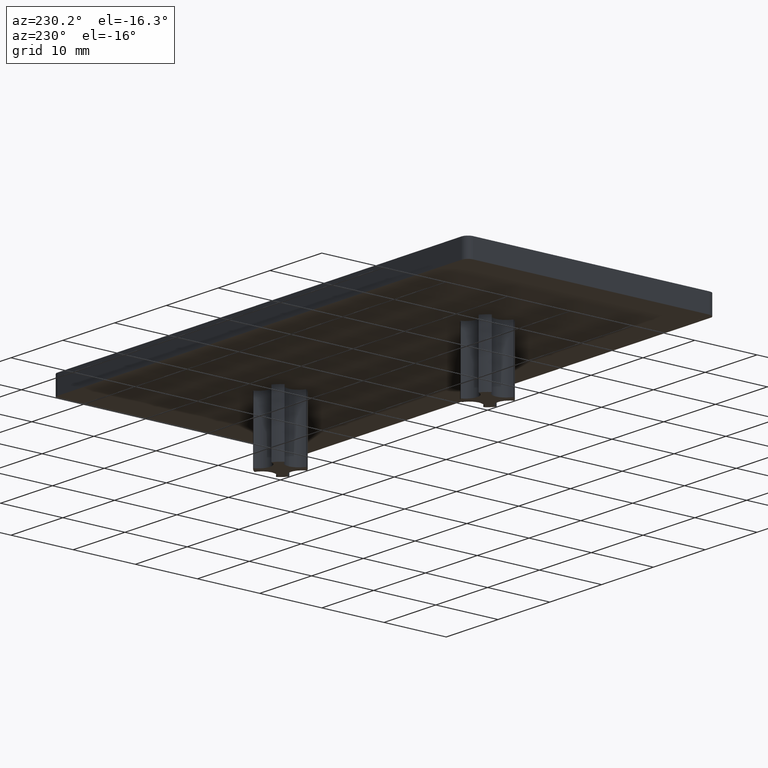
[diagram: clean part render]
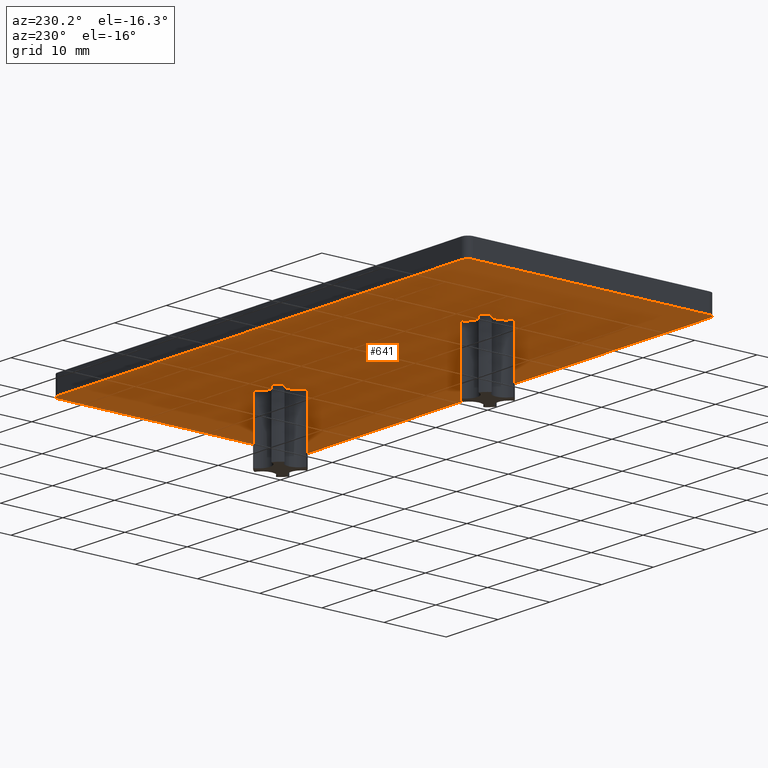
[diagram: same view with one face highlighted and labeled with its STEP entity id]
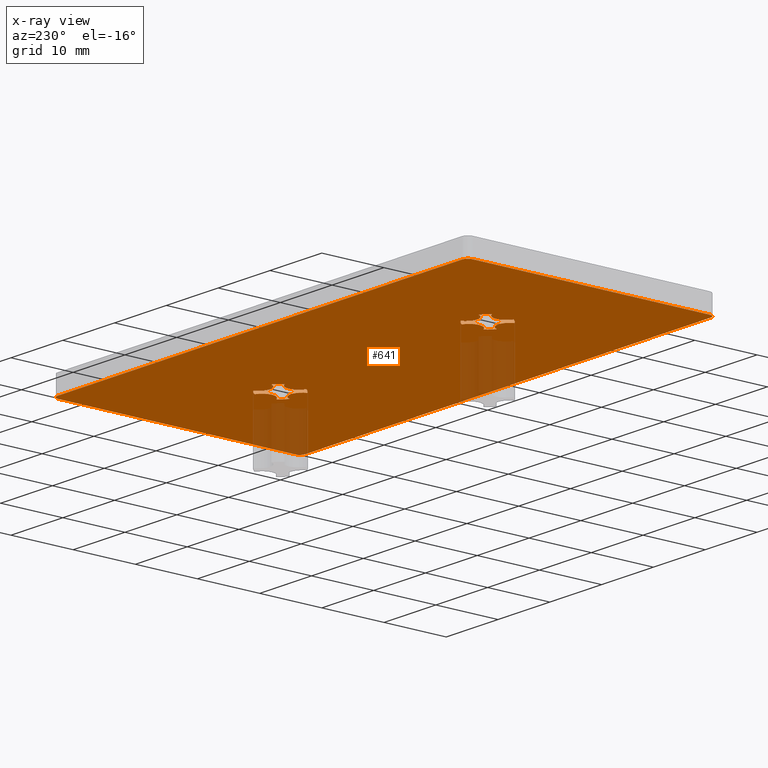
[diagram: x-ray of the same camera — body ghosted, the highlighted face saturated]
A machine part, auxiliary view. The second image highlights one B-rep face of the part: STEP entity #641.
The next image is the same camera in x-ray: the body ghosted, the highlighted face saturated — about 9% of this face is hidden behind the body in this view.
In plain terms, the highlighted planar face has unit normal (0, 0, -1).
Its self-contained STEP definition (entity closure, byte-faithful):
#18=CARTESIAN_POINT('',(-18.312427046943302,19.999999999999993,-2.220446E-015));
#19=VERTEX_POINT('',#18);
#26=CARTESIAN_POINT('',(-17.104999999999997,18.265180124623882,-2.220446E-015));
#27=VERTEX_POINT('',#26);
#28=CARTESIAN_POINT('',(-16.462427046943301,19.999999999999993,-2.220446E-015));
#29=DIRECTION('',(0.0,1.224647E-016,1.0));
#30=DIRECTION('',(0.0,-1.0,1.224647E-016));
#31=AXIS2_PLACEMENT_3D('',#28,#29,#30);
#32=CIRCLE('',#31,1.850000000000001);
#33=EDGE_CURVE('',#19,#27,#32,.T.);
#60=CARTESIAN_POINT('',(18.312427046943316,19.999999999999993,-2.220446E-015));
#61=VERTEX_POINT('',#60);
#68=CARTESIAN_POINT('',(17.105000000000015,21.734819875376111,-2.664535E-015));
#69=VERTEX_POINT('',#68);
#70=CARTESIAN_POINT('',(16.462427046943311,19.999999999999993,-2.220446E-015));
#71=DIRECTION('',(0.0,-1.224647E-016,-1.0));
#72=DIRECTION('',(0.0,-1.0,1.224647E-016));
#73=AXIS2_PLACEMENT_3D('',#70,#71,#72);
#74=CIRCLE('',#73,1.850000000000001);
#75=EDGE_CURVE('',#69,#61,#74,.T.);
#91=CARTESIAN_POINT('',(17.105000000000015,18.265180124623882,-2.220446E-015));
#92=VERTEX_POINT('',#91);
#93=CARTESIAN_POINT('',(18.265180124623900,17.104999999999990,-2.220446E-015));
#94=VERTEX_POINT('',#93);
#95=CARTESIAN_POINT('',(20.000000000000011,19.999999999999993,-2.220446E-015));
#96=DIRECTION('',(0.0,1.224647E-016,1.0));
#97=DIRECTION('',(0.0,-1.0,1.224647E-016));
#98=AXIS2_PLACEMENT_3D('',#95,#96,#97);
#99=CIRCLE('',#98,3.374999999999998);
#100=EDGE_CURVE('',#92,#94,#99,.T.);
#133=CARTESIAN_POINT('',(21.734819875376132,17.104999999999997,-2.220446E-015));
#134=VERTEX_POINT('',#133);
#135=CARTESIAN_POINT('',(20.000000000000011,16.462427046943297,-1.776357E-015));
#136=DIRECTION('',(0.0,-1.224647E-016,-1.0));
#137=DIRECTION('',(0.0,-1.0,1.224647E-016));
#138=AXIS2_PLACEMENT_3D('',#135,#136,#137);
#139=CIRCLE('',#138,1.850000000000000);
#140=EDGE_CURVE('',#94,#134,#139,.T.);
#166=CARTESIAN_POINT('',(22.895000009413462,18.265180140332681,-2.220446E-015));
#167=VERTEX_POINT('',#166);
#168=CARTESIAN_POINT('',(20.000000000000011,19.999999999999993,-2.220446E-015));
#169=DIRECTION('',(0.0,1.224647E-016,1.0));
#170=DIRECTION('',(0.0,-1.0,1.224647E-016));
#171=AXIS2_PLACEMENT_3D('',#168,#169,#170);
#172=CIRCLE('',#171,3.374999999999999);
#173=EDGE_CURVE('',#134,#167,#172,.T.);
#199=CARTESIAN_POINT('',(22.895000009413465,21.734819859667304,-2.664535E-015));
#200=VERTEX_POINT('',#199);
#201=CARTESIAN_POINT('',(23.537573004880834,19.999999999999993,-2.220446E-015));
#202=DIRECTION('',(0.0,-1.224647E-016,-1.0));
#203=DIRECTION('',(0.0,-1.0,1.224647E-016));
#204=AXIS2_PLACEMENT_3D('',#201,#202,#203);
#205=CIRCLE('',#204,1.850000000000003);
#206=EDGE_CURVE('',#167,#200,#205,.T.);
#232=CARTESIAN_POINT('',(21.734819875376125,22.894999999999996,-2.664535E-015));
#233=VERTEX_POINT('',#232);
#234=CARTESIAN_POINT('',(20.000000000000011,19.999999999999993,-2.220446E-015));
#235=DIRECTION('',(0.0,1.224647E-016,1.0));
#236=DIRECTION('',(0.0,-1.0,1.224647E-016));
#237=AXIS2_PLACEMENT_3D('',#234,#235,#236);
#238=CIRCLE('',#237,3.375000000000001);
#239=EDGE_CURVE('',#200,#233,#238,.T.);
#265=CARTESIAN_POINT('',(18.265180124623893,22.894999999999989,-2.664535E-015));
#266=VERTEX_POINT('',#265);
#267=CARTESIAN_POINT('',(20.000000000000011,23.537572953056703,-2.664535E-015));
#268=DIRECTION('',(0.0,-1.224647E-016,-1.0));
#269=DIRECTION('',(0.0,1.0,-1.224647E-016));
#270=AXIS2_PLACEMENT_3D('',#267,#268,#269);
#271=CIRCLE('',#270,1.850000000000004);
#272=EDGE_CURVE('',#233,#266,#271,.T.);
#298=CARTESIAN_POINT('',(20.000000000000011,19.999999999999993,-2.220446E-015));
#299=DIRECTION('',(0.0,1.224647E-016,1.0));
#300=DIRECTION('',(0.0,-1.0,1.224647E-016));
#301=AXIS2_PLACEMENT_3D('',#298,#299,#300);
#302=CIRCLE('',#301,3.374999999999999);
#303=EDGE_CURVE('',#266,#69,#302,.T.);
#331=CARTESIAN_POINT('',(16.462427046943311,19.999999999999993,-2.220446E-015));
#332=DIRECTION('',(0.0,-1.224647E-016,-1.0));
#333=DIRECTION('',(0.0,-1.0,1.224647E-016));
#334=AXIS2_PLACEMENT_3D('',#331,#332,#333);
#335=CIRCLE('',#334,1.850000000000001);
#336=EDGE_CURVE('',#61,#92,#335,.T.);
#363=CARTESIAN_POINT('',(-40.0,1.0,0.0));
#364=VERTEX_POINT('',#363);
#365=CARTESIAN_POINT('',(-40.0,38.999999999999993,-4.884981E-015));
#366=VERTEX_POINT('',#365);
#367=CARTESIAN_POINT('',(-40.0,1.0,0.0));
#368=DIRECTION('',(0.0,1.0,0.0));
#369=VECTOR('',#368,37.999999999999993);
#370=LINE('',#367,#369);
#371=EDGE_CURVE('',#364,#366,#370,.T.);
#413=CARTESIAN_POINT('',(39.000000000000014,39.999999999999993,-4.884981E-015));
#414=VERTEX_POINT('',#413);
#421=CARTESIAN_POINT('',(-38.999999999999972,39.999999999999993,-4.884981E-015));
#422=VERTEX_POINT('',#421);
#423=CARTESIAN_POINT('',(-38.999999999999972,39.999999999999993,-4.884981E-015));
#424=DIRECTION('',(1.0,0.0,0.0));
#425=VECTOR('',#424,77.999999999999986);
#426=LINE('',#423,#425);
#427=EDGE_CURVE('',#422,#414,#426,.T.);
#443=CARTESIAN_POINT('',(40.000000000000014,38.999999999999993,-4.884981E-015));
#444=VERTEX_POINT('',#443);
#445=CARTESIAN_POINT('',(40.000000000000014,1.0,0.0));
#446=VERTEX_POINT('',#445);
#447=CARTESIAN_POINT('',(40.000000000000014,38.999999999999993,-4.884981E-015));
#448=DIRECTION('',(0.0,-1.0,0.0));
#449=VECTOR('',#448,37.999999999999993);
#450=LINE('',#447,#449);
#451=EDGE_CURVE('',#444,#446,#450,.T.);
#483=CARTESIAN_POINT('',(39.000000000000014,0.0,0.0));
#484=VERTEX_POINT('',#483);
#485=CARTESIAN_POINT('',(-39.000000000000014,0.0,0.0));
#486=VERTEX_POINT('',#485);
#487=CARTESIAN_POINT('',(39.000000000000014,0.0,0.0));
#488=DIRECTION('',(-1.0,0.0,0.0));
#489=VECTOR('',#488,78.000000000000028);
#490=LINE('',#487,#489);
#491=EDGE_CURVE('',#484,#486,#490,.T.);
#518=CARTESIAN_POINT('',(-44.0,41.999999999999993,-4.884981E-015));
#519=DIRECTION('',(0.0,0.0,-1.0));
#520=DIRECTION('',(1.0,0.0,0.0));
#521=AXIS2_PLACEMENT_3D('',#518,#519,#520);
#522=PLANE('',#521);
#523=ORIENTED_EDGE('',*,*,#427,.T.);
#524=CARTESIAN_POINT('',(39.000000000000014,38.999999999999993,-4.884981E-015));
#525=DIRECTION('',(0.0,-1.224647E-016,-1.0));
#526=DIRECTION('',(1.0,0.0,0.0));
#527=AXIS2_PLACEMENT_3D('',#524,#525,#526);
#528=CIRCLE('',#527,1.000000000000001);
#529=EDGE_CURVE('',#414,#444,#528,.T.);
#530=ORIENTED_EDGE('',*,*,#529,.T.);
#531=ORIENTED_EDGE('',*,*,#451,.T.);
#532=CARTESIAN_POINT('',(39.000000000000014,1.0,0.0));
#533=DIRECTION('',(0.0,-1.224647E-016,-1.0));
#534=DIRECTION('',(1.0,0.0,0.0));
#535=AXIS2_PLACEMENT_3D('',#532,#533,#534);
#536=CIRCLE('',#535,1.000000000000001);
#537=EDGE_CURVE('',#446,#484,#536,.T.);
#538=ORIENTED_EDGE('',*,*,#537,.T.);
#539=ORIENTED_EDGE('',*,*,#491,.T.);
#540=CARTESIAN_POINT('',(-39.0,1.0,0.0));
#541=DIRECTION('',(0.0,-1.224647E-016,-1.0));
#542=DIRECTION('',(1.0,0.0,0.0));
#543=AXIS2_PLACEMENT_3D('',#540,#541,#542);
#544=CIRCLE('',#543,1.000000000000001);
#545=EDGE_CURVE('',#486,#364,#544,.T.);
#546=ORIENTED_EDGE('',*,*,#545,.T.);
#547=ORIENTED_EDGE('',*,*,#371,.T.);
#548=CARTESIAN_POINT('',(-38.999999999999972,38.999999999999993,-4.884981E-015));
#549=DIRECTION('',(0.0,-1.224647E-016,-1.0));
#550=DIRECTION('',(1.0,0.0,0.0));
#551=AXIS2_PLACEMENT_3D('',#548,#549,#550);
#552=CIRCLE('',#551,1.000000000000001);
#553=EDGE_CURVE('',#366,#422,#552,.T.);
#554=ORIENTED_EDGE('',*,*,#553,.T.);
#555=EDGE_LOOP('',(#523,#530,#531,#538,#539,#546,#547,#554));
#556=FACE_OUTER_BOUND('',#555,.T.);
#557=CARTESIAN_POINT('',(-18.265180124623878,17.104999999999990,-2.220446E-015));
#558=VERTEX_POINT('',#557);
#559=CARTESIAN_POINT('',(-19.999999999999996,19.999999999999993,-2.220446E-015));
#560=DIRECTION('',(0.0,-1.224647E-016,-1.0));
#561=DIRECTION('',(0.0,-1.0,1.224647E-016));
#562=AXIS2_PLACEMENT_3D('',#559,#560,#561);
#563=CIRCLE('',#562,3.374999999999998);
#564=EDGE_CURVE('',#27,#558,#563,.T.);
#565=ORIENTED_EDGE('',*,*,#564,.F.);
#566=ORIENTED_EDGE('',*,*,#33,.F.);
#567=CARTESIAN_POINT('',(-17.104999999999997,21.734819875376111,-2.664535E-015));
#568=VERTEX_POINT('',#567);
#569=CARTESIAN_POINT('',(-16.462427046943301,19.999999999999993,-2.220446E-015));
#570=DIRECTION('',(0.0,1.224647E-016,1.0));
#571=DIRECTION('',(0.0,-1.0,1.224647E-016));
#572=AXIS2_PLACEMENT_3D('',#569,#570,#571);
#573=CIRCLE('',#572,1.850000000000001);
#574=EDGE_CURVE('',#568,#19,#573,.T.);
#575=ORIENTED_EDGE('',*,*,#574,.F.);
#576=CARTESIAN_POINT('',(-18.265180124623878,22.894999999999989,-2.664535E-015));
#577=VERTEX_POINT('',#576);
#578=CARTESIAN_POINT('',(-19.999999999999996,19.999999999999993,-2.220446E-015));
#579=DIRECTION('',(0.0,-1.224647E-016,-1.0));
#580=DIRECTION('',(0.0,-1.0,1.224647E-016));
#581=AXIS2_PLACEMENT_3D('',#578,#579,#580);
#582=CIRCLE('',#581,3.374999999999999);
#583=EDGE_CURVE('',#577,#568,#582,.T.);
#584=ORIENTED_EDGE('',*,*,#583,.F.);
#585=CARTESIAN_POINT('',(-21.734819875376111,22.894999999999996,-2.664535E-015));
#586=VERTEX_POINT('',#585);
#587=CARTESIAN_POINT('',(-19.999999999999996,23.537572953056703,-2.664535E-015));
#588=DIRECTION('',(0.0,1.224647E-016,1.0));
#589=DIRECTION('',(0.0,1.0,-1.224647E-016));
#590=AXIS2_PLACEMENT_3D('',#587,#588,#589);
#591=CIRCLE('',#590,1.850000000000004);
#592=EDGE_CURVE('',#586,#577,#591,.T.);
#593=ORIENTED_EDGE('',*,*,#592,.F.);
#594=CARTESIAN_POINT('',(-22.895000009413437,21.734819859667304,-2.664535E-015));
#595=VERTEX_POINT('',#594);
#596=CARTESIAN_POINT('',(-19.999999999999996,19.999999999999993,-2.220446E-015));
#597=DIRECTION('',(0.0,-1.224647E-016,-1.0));
#598=DIRECTION('',(0.0,-1.0,1.224647E-016));
#599=AXIS2_PLACEMENT_3D('',#596,#597,#598);
#600=CIRCLE('',#599,3.375000000000001);
#601=EDGE_CURVE('',#595,#586,#600,.T.);
#602=ORIENTED_EDGE('',*,*,#601,.F.);
#603=CARTESIAN_POINT('',(-22.895000009413437,18.265180140332681,-2.220446E-015));
#604=VERTEX_POINT('',#603);
#605=CARTESIAN_POINT('',(-23.537573004880816,19.999999999999993,-2.220446E-015));
#606=DIRECTION('',(0.0,1.224647E-016,1.0));
#607=DIRECTION('',(0.0,-1.0,1.224647E-016));
#608=AXIS2_PLACEMENT_3D('',#605,#606,#607);
#609=CIRCLE('',#608,1.850000000000003);
#610=EDGE_CURVE('',#604,#595,#609,.T.);
#611=ORIENTED_EDGE('',*,*,#610,.F.);
#612=CARTESIAN_POINT('',(-21.734819875376111,17.104999999999997,-2.220446E-015));
#613=VERTEX_POINT('',#612);
#614=CARTESIAN_POINT('',(-19.999999999999996,19.999999999999993,-2.220446E-015));
#615=DIRECTION('',(0.0,-1.224647E-016,-1.0));
#616=DIRECTION('',(0.0,-1.0,1.224647E-016));
#617=AXIS2_PLACEMENT_3D('',#614,#615,#616);
#618=CIRCLE('',#617,3.374999999999999);
#619=EDGE_CURVE('',#613,#604,#618,.T.);
#620=ORIENTED_EDGE('',*,*,#619,.F.);
#621=CARTESIAN_POINT('',(-19.999999999999996,16.462427046943297,-1.776357E-015));
#622=DIRECTION('',(0.0,1.224647E-016,1.0));
#623=DIRECTION('',(0.0,-1.0,1.224647E-016));
#624=AXIS2_PLACEMENT_3D('',#621,#622,#623);
#625=CIRCLE('',#624,1.850000000000000);
#626=EDGE_CURVE('',#558,#613,#625,.T.);
#627=ORIENTED_EDGE('',*,*,#626,.F.);
#628=EDGE_LOOP('',(#565,#566,#575,#584,#593,#602,#611,#620,#627));
#629=FACE_BOUND('',#628,.T.);
#630=ORIENTED_EDGE('',*,*,#100,.T.);
#631=ORIENTED_EDGE('',*,*,#140,.T.);
#632=ORIENTED_EDGE('',*,*,#173,.T.);
#633=ORIENTED_EDGE('',*,*,#206,.T.);
#634=ORIENTED_EDGE('',*,*,#239,.T.);
#635=ORIENTED_EDGE('',*,*,#272,.T.);
#636=ORIENTED_EDGE('',*,*,#303,.T.);
#637=ORIENTED_EDGE('',*,*,#75,.T.);
#638=ORIENTED_EDGE('',*,*,#336,.T.);
#639=EDGE_LOOP('',(#630,#631,#632,#633,#634,#635,#636,#637,#638));
#640=FACE_BOUND('',#639,.T.);
#641=ADVANCED_FACE('',(#556,#629,#640),#522,.T.);